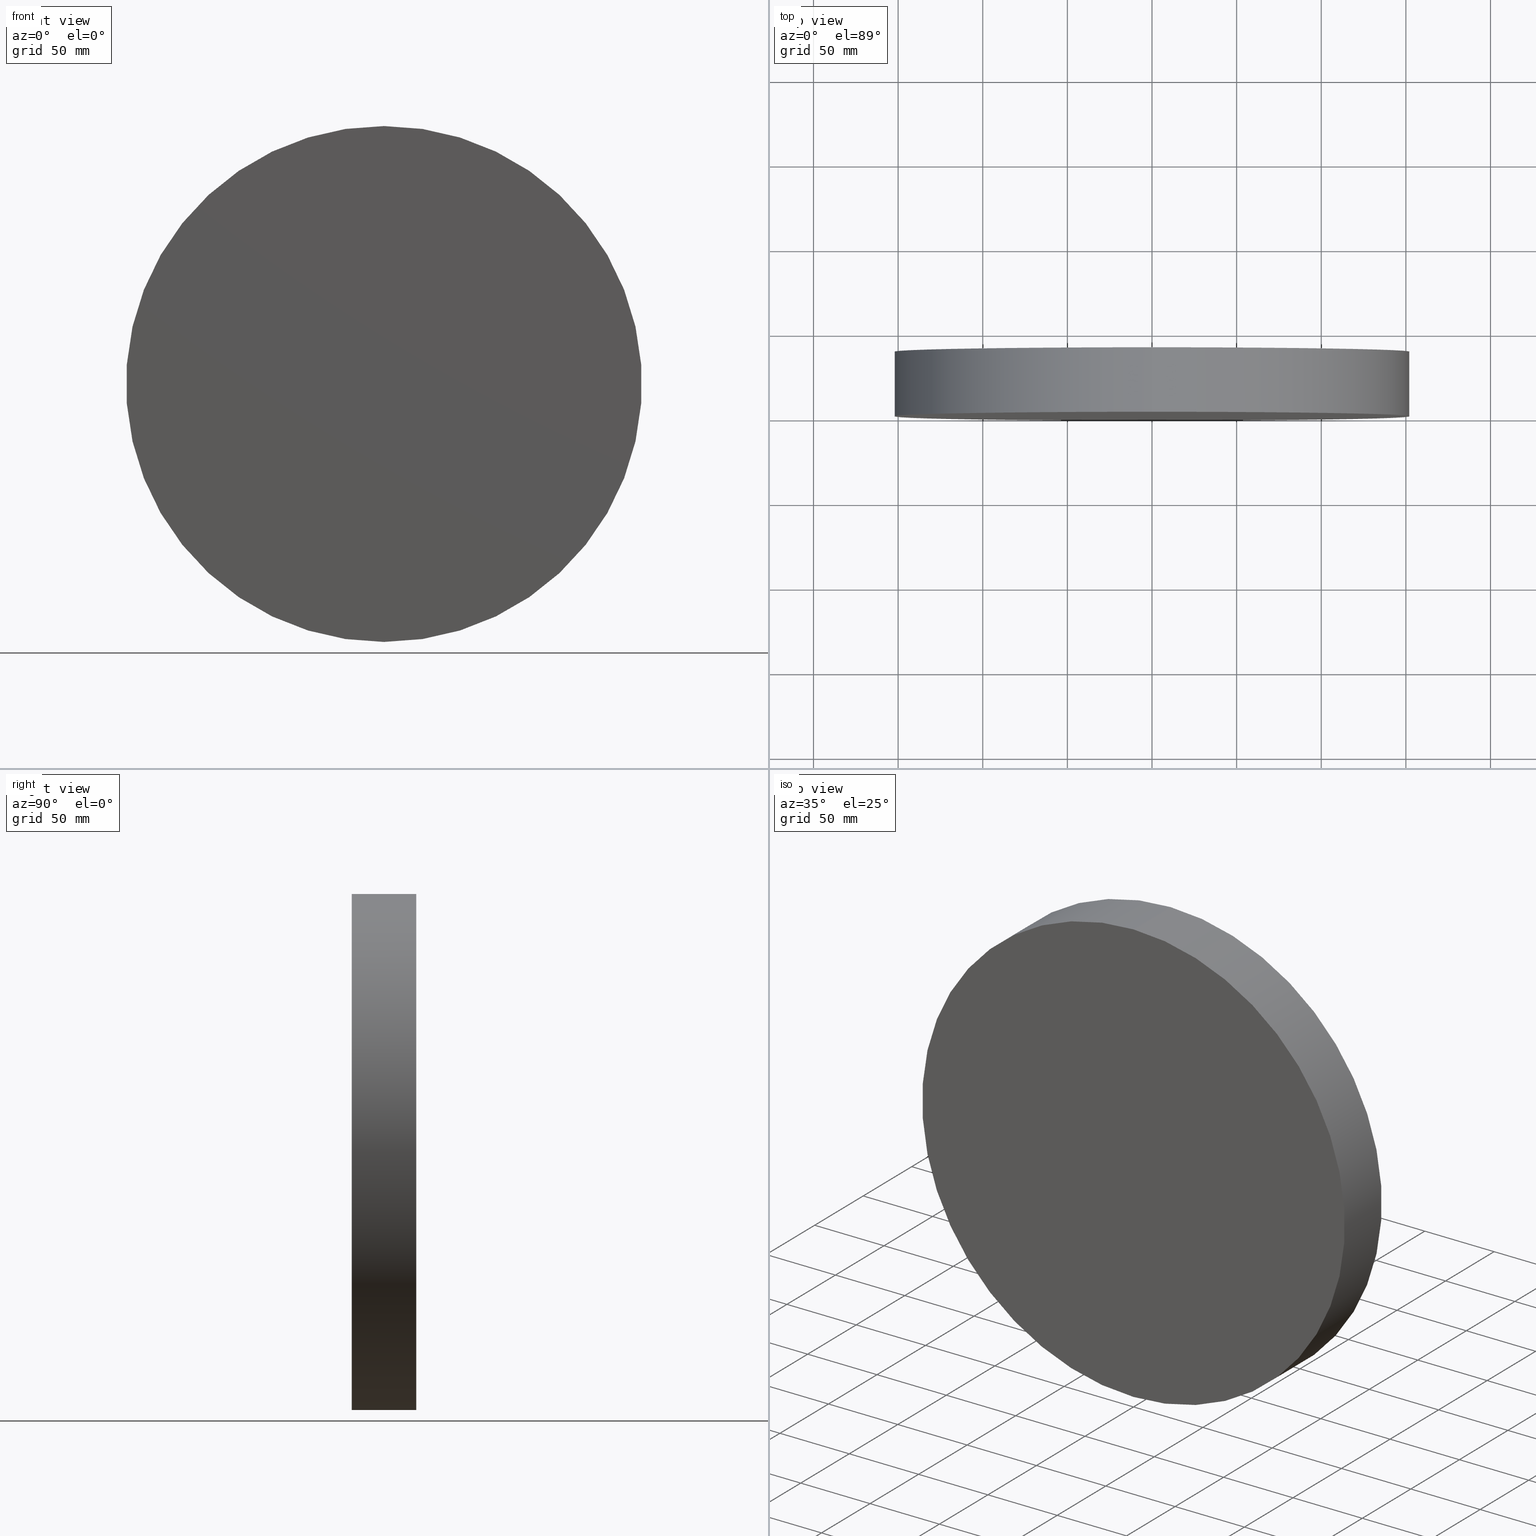
[diagram: canonical four-view strip — front | top / right | iso, engineering-drawing reading convention]
A machine part, canonical four-view strip (front | top / right | iso — engineering-drawing reading convention). The complete STEP part file that produces these views, byte-faithful:
ISO-10303-21;
HEADER;
FILE_DESCRIPTION (( 'STEP AP214' ),
    '1' );
FILE_NAME ('192507.STEP',
    '2019-07-19T05:42:09',
    ( 'user' ),
    ( '΢���й�' ),
    'SwSTEP 2.0',
    'SolidWorks 2016',
    '' );
FILE_SCHEMA (( 'AUTOMOTIVE_DESIGN' ));
ENDSEC;

DATA;
#1 = EDGE_CURVE ( 'NONE', #120, #16, #84, .T. ) ;
#2 = COLOUR_RGB ( '',1.000000000000000000, 1.000000000000000000, 1.000000000000000000 ) ;
#3 =( NAMED_UNIT ( * ) SI_UNIT ( $, .STERADIAN. ) SOLID_ANGLE_UNIT ( ) );
#4 = VERTEX_POINT ( 'NONE', #14 ) ;
#5 = DIRECTION ( 'NONE',  ( 0.0000000000000000000, 0.0000000000000000000, -1.000000000000000000 ) ) ;
#6 = PRODUCT_DEFINITION_FORMATION_WITH_SPECIFIED_SOURCE ( '�κ�', '', #12, .NOT_KNOWN. ) ;
#7 = CARTESIAN_POINT ( 'NONE',  ( 0.0000000000000000000, 38.10000000000000100, -152.4000000000000100 ) ) ;
#8 = FILL_AREA_STYLE_COLOUR ( '', #2 ) ;
#9 = ORIENTED_EDGE ( 'NONE', *, *, #82, .F. ) ;
#10 = ADVANCED_FACE ( 'NONE', ( #53 ), #106, .T. ) ;
#11 = PRODUCT_RELATED_PRODUCT_CATEGORY ( 'part', '', ( #12 ) ) ;
#12 = PRODUCT ( '192507', '192507', '', ( #42 ) ) ;
#13 = UNCERTAINTY_MEASURE_WITH_UNIT (LENGTH_MEASURE( 1.000000000000000100E-005 ), #37, 'distance_accuracy_value', 'NONE');
#14 = CARTESIAN_POINT ( 'NONE',  ( 0.0000000000000000000, 0.0000000000000000000, -152.4000000000000100 ) ) ;
#15 =( NAMED_UNIT ( * ) PLANE_ANGLE_UNIT ( ) SI_UNIT ( $, .RADIAN. ) );
#16 = VERTEX_POINT ( 'NONE', #105 ) ;
#17 = APPLICATION_PROTOCOL_DEFINITION ( 'draft international standard', 'automotive_design', 1998, #18 ) ;
#18 = APPLICATION_CONTEXT ( 'automotive_design' ) ;
#19 = SURFACE_SIDE_STYLE ('',( #117 ) ) ;
#20 = PRESENTATION_STYLE_ASSIGNMENT (( #24 ) ) ;
#21 = FILL_AREA_STYLE ('',( #8 ) ) ;
#22 = LINE ( 'NONE', #138, #93 ) ;
#23 = MECHANICAL_DESIGN_GEOMETRIC_PRESENTATION_REPRESENTATION (  '', ( #92 ), #111 ) ;
#24 = SURFACE_STYLE_USAGE ( .BOTH. , #125 ) ;
#25 = EDGE_LOOP ( 'NONE', ( #79, #122, #131, #30 ) ) ;
#26 = PLANE ( 'NONE',  #76 ) ;
#27 = MANIFOLD_SOLID_BREP ( '͹̨-����1', #36 ) ;
#28 = CARTESIAN_POINT ( 'NONE',  ( 1.866361721900565800E-014, 0.0000000000000000000, 152.4000000000000100 ) ) ;
#29 = DIRECTION ( 'NONE',  ( -0.0000000000000000000, -1.000000000000000000, -0.0000000000000000000 ) ) ;
#30 = ORIENTED_EDGE ( 'NONE', *, *, #60, .F. ) ;
#31 = VECTOR ( 'NONE', #137, 1000.000000000000000 ) ;
#32 = PRESENTATION_LAYER_ASSIGNMENT (  '', '', ( #92 ) ) ;
#33 = AXIS2_PLACEMENT_3D ( 'NONE', #94, #65, #85 ) ;
#34 = VERTEX_POINT ( 'NONE', #28 ) ;
#35 = SURFACE_STYLE_USAGE ( .BOTH. , #19 ) ;
#36 = CLOSED_SHELL ( 'NONE', ( #10, #58, #108, #67 ) ) ;
#37 =( LENGTH_UNIT ( ) NAMED_UNIT ( * ) SI_UNIT ( .MILLI., .METRE. ) );
#38 =( NAMED_UNIT ( * ) PLANE_ANGLE_UNIT ( ) SI_UNIT ( $, .RADIAN. ) );
#39 =( NAMED_UNIT ( * ) SI_UNIT ( $, .STERADIAN. ) SOLID_ANGLE_UNIT ( ) );
#40 = ORIENTED_EDGE ( 'NONE', *, *, #47, .T. ) ;
#41 = EDGE_CURVE ( 'NONE', #4, #34, #134, .T. ) ;
#42 = PRODUCT_CONTEXT ( 'NONE', #18, 'mechanical' ) ;
#43 = DIRECTION ( 'NONE',  ( 0.0000000000000000000, 1.000000000000000000, 0.0000000000000000000 ) ) ;
#44 = AXIS2_PLACEMENT_3D ( 'NONE', #104, #136, #133 ) ;
#45 = FACE_OUTER_BOUND ( 'NONE', #64, .T. ) ;
#46 =( NAMED_UNIT ( * ) SI_UNIT ( $, .STERADIAN. ) SOLID_ANGLE_UNIT ( ) );
#47 = EDGE_CURVE ( 'NONE', #16, #120, #115, .T. ) ;
#48 =( LENGTH_UNIT ( ) NAMED_UNIT ( * ) SI_UNIT ( .MILLI., .METRE. ) );
#49 = SURFACE_STYLE_FILL_AREA ( #112 ) ;
#50 = FILL_AREA_STYLE_COLOUR ( '', #83 ) ;
#51 = DIRECTION ( 'NONE',  ( 0.0000000000000000000, 1.000000000000000000, 0.0000000000000000000 ) ) ;
#52 = PRESENTATION_STYLE_ASSIGNMENT (( #35 ) ) ;
#53 = FACE_OUTER_BOUND ( 'NONE', #25, .T. ) ;
#54 = AXIS2_PLACEMENT_3D ( 'NONE', #101, #43, #102 ) ;
#55 = DIRECTION ( 'NONE',  ( 1.000000000000000000, 0.0000000000000000000, 0.0000000000000000000 ) ) ;
#56 = UNCERTAINTY_MEASURE_WITH_UNIT (LENGTH_MEASURE( 1.000000000000000100E-005 ), #48, 'distance_accuracy_value', 'NONE');
#57 = AXIS2_PLACEMENT_3D ( 'NONE', #114, #72, #78 ) ;
#58 = ADVANCED_FACE ( 'NONE', ( #110 ), #132, .T. ) ;
#59 = SHAPE_DEFINITION_REPRESENTATION ( #81, #129 ) ;
#60 = EDGE_CURVE ( 'NONE', #120, #4, #95, .T. ) ;
#61 = EDGE_LOOP ( 'NONE', ( #118, #140, #68, #97 ) ) ;
#62 = EDGE_LOOP ( 'NONE', ( #88, #9 ) ) ;
#63 = DIRECTION ( 'NONE',  ( 0.0000000000000000000, 0.0000000000000000000, 1.000000000000000000 ) ) ;
#64 = EDGE_LOOP ( 'NONE', ( #113, #40 ) ) ;
#65 = DIRECTION ( 'NONE',  ( 0.0000000000000000000, 1.000000000000000000, 0.0000000000000000000 ) ) ;
#66 = FACE_OUTER_BOUND ( 'NONE', #62, .T. ) ;
#67 = ADVANCED_FACE ( 'NONE', ( #66 ), #127, .F. ) ;
#68 = ORIENTED_EDGE ( 'NONE', *, *, #60, .T. ) ;
#69 =( GEOMETRIC_REPRESENTATION_CONTEXT ( 3 ) GLOBAL_UNCERTAINTY_ASSIGNED_CONTEXT ( ( #103 ) ) GLOBAL_UNIT_ASSIGNED_CONTEXT ( ( #80, #73, #46 ) ) REPRESENTATION_CONTEXT ( 'NONE', 'WORKASPACE' ) );
#70 = DIRECTION ( 'NONE',  ( -0.0000000000000000000, -1.000000000000000000, -0.0000000000000000000 ) ) ;
#71 = AXIS2_PLACEMENT_3D ( 'NONE', #128, #86, #121 ) ;
#72 = DIRECTION ( 'NONE',  ( -0.0000000000000000000, -1.000000000000000000, -0.0000000000000000000 ) ) ;
#73 =( NAMED_UNIT ( * ) PLANE_ANGLE_UNIT ( ) SI_UNIT ( $, .RADIAN. ) );
#74 = CARTESIAN_POINT ( 'NONE',  ( 0.0000000000000000000, 0.0000000000000000000, 0.0000000000000000000 ) ) ;
#75 = CARTESIAN_POINT ( 'NONE',  ( 0.0000000000000000000, 38.10000000000000100, 0.0000000000000000000 ) ) ;
#76 = AXIS2_PLACEMENT_3D ( 'NONE', #135, #116, #123 ) ;
#77 = CARTESIAN_POINT ( 'NONE',  ( 0.0000000000000000000, 38.10000000000000100, 0.0000000000000000000 ) ) ;
#78 = DIRECTION ( 'NONE',  ( 0.0000000000000000000, 0.0000000000000000000, -1.000000000000000000 ) ) ;
#79 = ORIENTED_EDGE ( 'NONE', *, *, #47, .F. ) ;
#80 =( LENGTH_UNIT ( ) NAMED_UNIT ( * ) SI_UNIT ( .MILLI., .METRE. ) );
#81 = PRODUCT_DEFINITION_SHAPE ( 'NONE', 'NONE',  #139 ) ;
#82 = EDGE_CURVE ( 'NONE', #34, #4, #107, .T. ) ;
#83 = COLOUR_RGB ( '',1.000000000000000000, 1.000000000000000000, 1.000000000000000000 ) ;
#84 = CIRCLE ( 'NONE', #99, 152.4000000000000100 ) ;
#85 = DIRECTION ( 'NONE',  ( 0.0000000000000000000, 0.0000000000000000000, 1.000000000000000000 ) ) ;
#86 = DIRECTION ( 'NONE',  ( 0.0000000000000000000, 1.000000000000000000, 0.0000000000000000000 ) ) ;
#87 = APPLICATION_PROTOCOL_DEFINITION ( 'draft international standard', 'automotive_design', 1998, #126 ) ;
#88 = ORIENTED_EDGE ( 'NONE', *, *, #41, .F. ) ;
#89 = EDGE_CURVE ( 'NONE', #16, #34, #22, .T. ) ;
#90 = CARTESIAN_POINT ( 'NONE',  ( 0.0000000000000000000, 38.10000000000000100, -152.4000000000000100 ) ) ;
#91 = STYLED_ITEM ( 'NONE', ( #52 ), #129 ) ;
#92 = STYLED_ITEM ( 'NONE', ( #20 ), #27 ) ;
#93 = VECTOR ( 'NONE', #70, 1000.000000000000000 ) ;
#94 = CARTESIAN_POINT ( 'NONE',  ( 0.0000000000000000000, 0.0000000000000000000, 0.0000000000000000000 ) ) ;
#95 = LINE ( 'NONE', #90, #31 ) ;
#96 = PRODUCT_DEFINITION_CONTEXT ( 'detailed design', #126, 'design' ) ;
#97 = ORIENTED_EDGE ( 'NONE', *, *, #41, .T. ) ;
#98 = PRESENTATION_LAYER_ASSIGNMENT (  '', '', ( #91 ) ) ;
#99 = AXIS2_PLACEMENT_3D ( 'NONE', #77, #51, #124 ) ;
#100 = MECHANICAL_DESIGN_GEOMETRIC_PRESENTATION_REPRESENTATION (  '', ( #91 ), #109 ) ;
#101 = CARTESIAN_POINT ( 'NONE',  ( 0.0000000000000000000, 38.10000000000000100, 0.0000000000000000000 ) ) ;
#102 = DIRECTION ( 'NONE',  ( 0.0000000000000000000, 0.0000000000000000000, 1.000000000000000000 ) ) ;
#103 = UNCERTAINTY_MEASURE_WITH_UNIT (LENGTH_MEASURE( 1.000000000000000100E-005 ), #80, 'distance_accuracy_value', 'NONE');
#104 = CARTESIAN_POINT ( 'NONE',  ( 0.0000000000000000000, 0.0000000000000000000, 0.0000000000000000000 ) ) ;
#105 = CARTESIAN_POINT ( 'NONE',  ( 1.866361721900565800E-014, 38.10000000000000100, 152.4000000000000100 ) ) ;
#106 = CYLINDRICAL_SURFACE ( 'NONE', #57, 152.4000000000000100 ) ;
#107 = CIRCLE ( 'NONE', #33, 152.4000000000000100 ) ;
#108 = ADVANCED_FACE ( 'NONE', ( #45 ), #26, .T. ) ;
#109 =( GEOMETRIC_REPRESENTATION_CONTEXT ( 3 ) GLOBAL_UNCERTAINTY_ASSIGNED_CONTEXT ( ( #13 ) ) GLOBAL_UNIT_ASSIGNED_CONTEXT ( ( #37, #38, #39 ) ) REPRESENTATION_CONTEXT ( 'NONE', 'WORKASPACE' ) );
#110 = FACE_OUTER_BOUND ( 'NONE', #61, .T. ) ;
#111 =( GEOMETRIC_REPRESENTATION_CONTEXT ( 3 ) GLOBAL_UNCERTAINTY_ASSIGNED_CONTEXT ( ( #56 ) ) GLOBAL_UNIT_ASSIGNED_CONTEXT ( ( #48, #15, #3 ) ) REPRESENTATION_CONTEXT ( 'NONE', 'WORKASPACE' ) );
#112 = FILL_AREA_STYLE ('',( #50 ) ) ;
#113 = ORIENTED_EDGE ( 'NONE', *, *, #1, .T. ) ;
#114 = CARTESIAN_POINT ( 'NONE',  ( 0.0000000000000000000, 38.10000000000000100, 0.0000000000000000000 ) ) ;
#115 = CIRCLE ( 'NONE', #54, 152.4000000000000100 ) ;
#116 = DIRECTION ( 'NONE',  ( 0.0000000000000000000, 1.000000000000000000, 0.0000000000000000000 ) ) ;
#117 = SURFACE_STYLE_FILL_AREA ( #21 ) ;
#118 = ORIENTED_EDGE ( 'NONE', *, *, #89, .F. ) ;
#119 = AXIS2_PLACEMENT_3D ( 'NONE', #75, #29, #5 ) ;
#120 = VERTEX_POINT ( 'NONE', #7 ) ;
#121 = DIRECTION ( 'NONE',  ( 0.0000000000000000000, 0.0000000000000000000, 1.000000000000000000 ) ) ;
#122 = ORIENTED_EDGE ( 'NONE', *, *, #89, .T. ) ;
#123 = DIRECTION ( 'NONE',  ( 0.0000000000000000000, -0.0000000000000000000, 1.000000000000000000 ) ) ;
#124 = DIRECTION ( 'NONE',  ( 0.0000000000000000000, 0.0000000000000000000, 1.000000000000000000 ) ) ;
#125 = SURFACE_SIDE_STYLE ('',( #49 ) ) ;
#126 = APPLICATION_CONTEXT ( 'automotive_design' ) ;
#127 = PLANE ( 'NONE',  #44 ) ;
#128 = CARTESIAN_POINT ( 'NONE',  ( 0.0000000000000000000, 0.0000000000000000000, 0.0000000000000000000 ) ) ;
#129 = ADVANCED_BREP_SHAPE_REPRESENTATION ( '192507', ( #27, #130 ), #69 ) ;
#130 = AXIS2_PLACEMENT_3D ( 'NONE', #74, #63, #55 ) ;
#131 = ORIENTED_EDGE ( 'NONE', *, *, #82, .T. ) ;
#132 = CYLINDRICAL_SURFACE ( 'NONE', #119, 152.4000000000000100 ) ;
#133 = DIRECTION ( 'NONE',  ( 0.0000000000000000000, -0.0000000000000000000, 1.000000000000000000 ) ) ;
#134 = CIRCLE ( 'NONE', #71, 152.4000000000000100 ) ;
#135 = CARTESIAN_POINT ( 'NONE',  ( 0.0000000000000000000, 38.10000000000000100, 0.0000000000000000000 ) ) ;
#136 = DIRECTION ( 'NONE',  ( 0.0000000000000000000, 1.000000000000000000, 0.0000000000000000000 ) ) ;
#137 = DIRECTION ( 'NONE',  ( -0.0000000000000000000, -1.000000000000000000, -0.0000000000000000000 ) ) ;
#138 = CARTESIAN_POINT ( 'NONE',  ( 1.866361721900565800E-014, 38.10000000000000100, 152.4000000000000100 ) ) ;
#139 = PRODUCT_DEFINITION ( 'δ֪', '', #6, #96 ) ;
#140 = ORIENTED_EDGE ( 'NONE', *, *, #1, .F. ) ;
ENDSEC;
END-ISO-10303-21;
